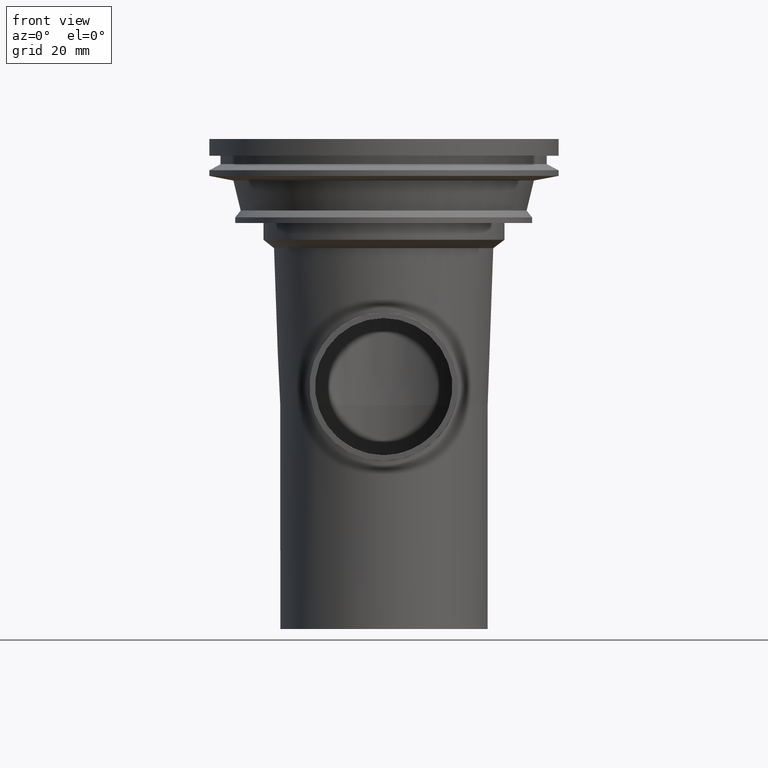
[diagram: clean part render]
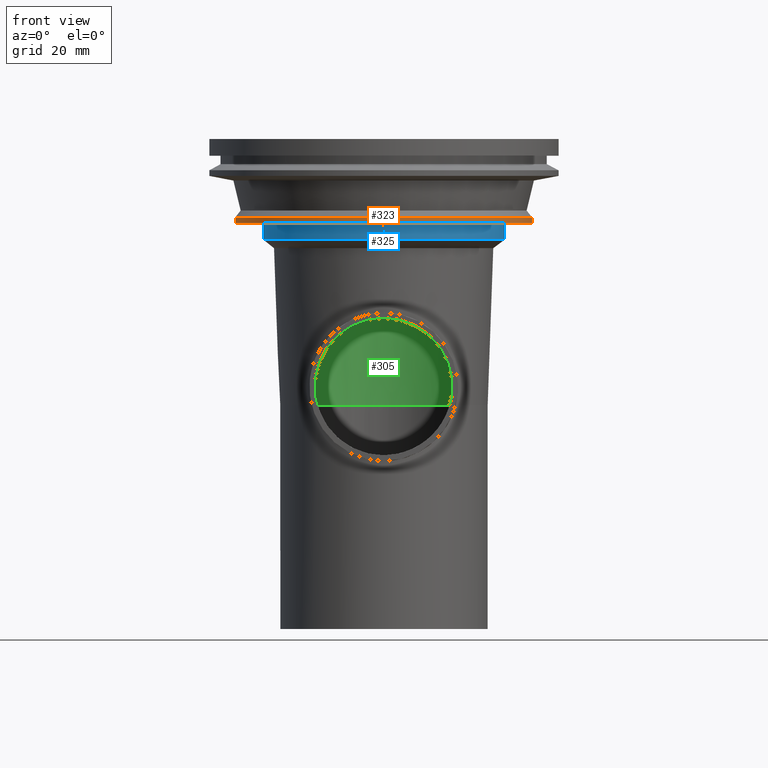
[diagram: same view with three faces highlighted in distinct colors, each labeled with its STEP entity id]
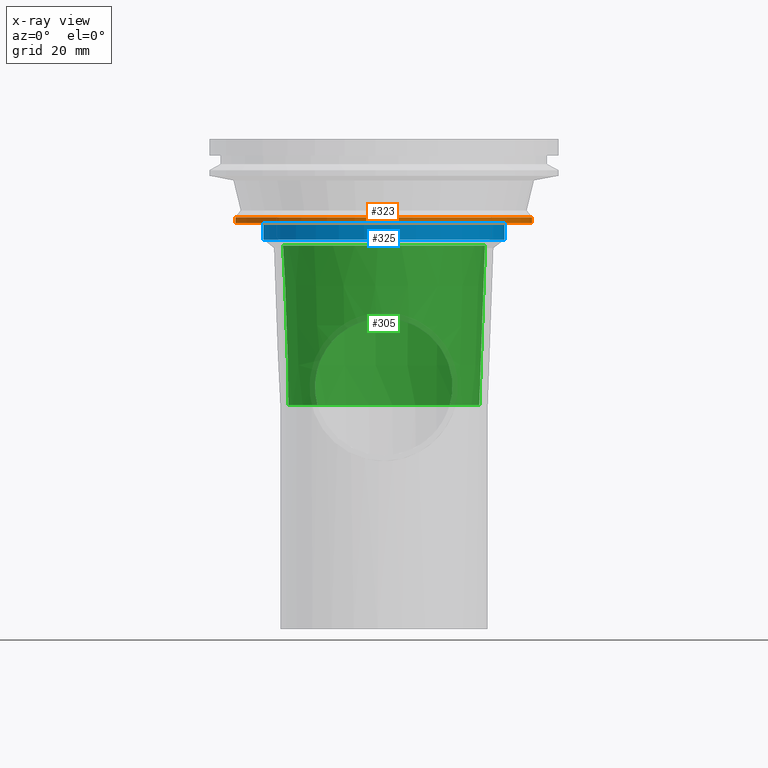
[diagram: x-ray of the same camera — body ghosted, the three highlighted faces saturated]
A machine part, front view with three faces highlighted in distinct colors.
The next image is the same camera in x-ray (body ghosted, the three faces saturated) — at least one of them is partly hidden behind the body in this view.
Their STEP definitions:

[orange] entity #323 — the highlighted cylindrical surface (bore or boss wall) has radius 53 mm, axis along (0, 0, 1).
#57=CIRCLE('',#384,53.);
#58=CIRCLE('',#386,53.);
#107=ORIENTED_EDGE('',*,*,#148,.T.);
#108=ORIENTED_EDGE('',*,*,#147,.F.);
#147=EDGE_CURVE('',#175,#175,#57,.T.);
#148=EDGE_CURVE('',#176,#176,#58,.T.);
#175=VERTEX_POINT('',#667);
#176=VERTEX_POINT('',#670);
#224=EDGE_LOOP('',(#107));
#225=EDGE_LOOP('',(#108));
#278=FACE_BOUND('',#224,.T.);
#279=FACE_BOUND('',#225,.T.);
#300=CYLINDRICAL_SURFACE('',#385,53.);
#323=ADVANCED_FACE('',(#278,#279),#300,.T.);
#384=AXIS2_PLACEMENT_3D('',#666,#480,#481);
#385=AXIS2_PLACEMENT_3D('',#668,#482,#483);
#386=AXIS2_PLACEMENT_3D('',#669,#484,#485);
#480=DIRECTION('',(0.,0.,1.));
#481=DIRECTION('',(1.,0.,0.));
#482=DIRECTION('',(0.,0.,1.));
#483=DIRECTION('',(1.,0.,0.));
#484=DIRECTION('',(0.,0.,1.));
#485=DIRECTION('',(1.,0.,0.));
#666=CARTESIAN_POINT('',(0.,0.,-28.0001386583387));
#667=CARTESIAN_POINT('',(53.,0.,-28.0001386583387));
#668=CARTESIAN_POINT('',(0.,0.,50.));
#669=CARTESIAN_POINT('',(0.,0.,-30.));
#670=CARTESIAN_POINT('',(53.,0.,-30.));

[blue] entity #325 — the highlighted cylindrical surface (bore or boss wall) has radius 43.145 mm, axis along (0, 0, 1).
#59=CIRCLE('',#388,43.145);
#60=CIRCLE('',#390,43.145);
#111=ORIENTED_EDGE('',*,*,#150,.T.);
#112=ORIENTED_EDGE('',*,*,#149,.F.);
#149=EDGE_CURVE('',#177,#177,#59,.T.);
#150=EDGE_CURVE('',#178,#178,#60,.T.);
#177=VERTEX_POINT('',#673);
#178=VERTEX_POINT('',#676);
#228=EDGE_LOOP('',(#111));
#229=EDGE_LOOP('',(#112));
#282=FACE_BOUND('',#228,.T.);
#283=FACE_BOUND('',#229,.T.);
#301=CYLINDRICAL_SURFACE('',#389,43.145);
#325=ADVANCED_FACE('',(#282,#283),#301,.T.);
#388=AXIS2_PLACEMENT_3D('',#672,#488,#489);
#389=AXIS2_PLACEMENT_3D('',#674,#490,#491);
#390=AXIS2_PLACEMENT_3D('',#675,#492,#493);
#488=DIRECTION('',(0.,0.,1.));
#489=DIRECTION('',(1.,0.,0.));
#490=DIRECTION('',(0.,0.,1.));
#491=DIRECTION('',(1.,0.,0.));
#492=DIRECTION('',(0.,0.,1.));
#493=DIRECTION('',(1.,0.,0.));
#672=CARTESIAN_POINT('',(0.,0.,-30.));
#673=CARTESIAN_POINT('',(43.145,0.,-30.));
#674=CARTESIAN_POINT('',(0.,0.,50.));
#675=CARTESIAN_POINT('',(0.,0.,-36.));
#676=CARTESIAN_POINT('',(43.145,0.,-36.));

[green] entity #305 — the highlighted conical surface has half-angle 2.046 deg.
#27=CONICAL_SURFACE('',#348,34.143,0.0357094364958043);
#37=CIRCLE('',#346,34.143);
#39=CIRCLE('',#349,36.1757550315357);
#68=ORIENTED_EDGE('',*,*,#127,.T.);
#69=ORIENTED_EDGE('',*,*,#125,.F.);
#70=ORIENTED_EDGE('',*,*,#122,.F.);
#122=EDGE_CURVE('',#152,#153,#180,.T.);
#125=EDGE_CURVE('',#153,#152,#37,.T.);
#127=EDGE_CURVE('',#156,#156,#39,.T.);
#152=VERTEX_POINT('',#535);
#153=VERTEX_POINT('',#536);
#156=VERTEX_POINT('',#566);
#180=B_SPLINE_CURVE_WITH_KNOTS('',3,(#506,#507,#508,#509,#510,#511,#512,
#513,#514,#515,#516,#517,#518,#519,#520,#521,#522,#523,#524,#525,#526,#527,
#528,#529,#530,#531,#532,#533,#534),.UNSPECIFIED.,.F.,.F.,(4,1,1,1,1,1,
1,1,1,1,1,1,1,1,1,1,1,1,1,1,1,1,1,1,1,1,4),(2.08824207813058E-7,0.00584334820832428,
0.00876491790038252,0.0116864875924408,0.014608057284499,0.0175296269765572,
0.0233727663606737,0.0262943360527319,0.0292159057447902,0.0350590451289066,
0.0379806148209649,0.0409021845130231,0.0438237542050813,0.0467453238971396,
0.0496668935891978,0.052588463281256,0.0584316026653725,0.0613531723574307,
0.064274742049489,0.0701178814336055,0.0730394511256637,0.0759610208177219,
0.0818041602018384,0.0847257298938966,0.0876472995859549,0.0905688692780131,
0.0934904389700713),.UNSPECIFIED.);
#188=EDGE_LOOP('',(#68));
#189=EDGE_LOOP('',(#69,#70));
#242=FACE_BOUND('',#188,.T.);
#243=FACE_BOUND('',#189,.T.);
#305=ADVANCED_FACE('',(#242,#243),#27,.F.);
#346=AXIS2_PLACEMENT_3D('',#561,#404,#405);
#348=AXIS2_PLACEMENT_3D('',#564,#408,#409);
#349=AXIS2_PLACEMENT_3D('',#565,#410,#411);
#404=DIRECTION('',(0.,0.,1.));
#405=DIRECTION('',(1.,0.,0.));
#408=DIRECTION('',(0.,0.,1.));
#409=DIRECTION('',(1.,0.,0.));
#410=DIRECTION('',(0.,0.,1.));
#411=DIRECTION('',(1.,0.,0.));
#506=CARTESIAN_POINT('',(-23.6220236220355,-24.6524734864475,-94.9999999999996));
#507=CARTESIAN_POINT('',(-24.1353230918689,-24.2529255524038,-93.1345888920638));
#508=CARTESIAN_POINT('',(-24.5768480491504,-23.9437577479033,-90.2406856937661));
#509=CARTESIAN_POINT('',(-24.4591190572159,-24.266913583681,-86.3011511830542));
#510=CARTESIAN_POINT('',(-24.0332903827029,-24.8342150542807,-83.4625639398011));
#511=CARTESIAN_POINT('',(-23.2863618041603,-25.6735427153631,-80.7166123166587));
#512=CARTESIAN_POINT('',(-21.938495784923,-27.0145055089608,-77.3328238384925));
#513=CARTESIAN_POINT('',(-20.0527542667314,-28.602450273817,-74.2278590746328));
#514=CARTESIAN_POINT('',(-17.7381497788545,-30.1774282937036,-71.5287978442168));
#515=CARTESIAN_POINT('',(-15.0885592357347,-31.7260832934169,-69.0490863407522));
#516=CARTESIAN_POINT('',(-12.0627199962117,-33.0884058587154,-67.0356642091545));
#517=CARTESIAN_POINT('',(-8.63452239734272,-34.1587057988114,-65.5120189071933));
#518=CARTESIAN_POINT('',(-5.86159850652869,-34.7750139960671,-64.6531125738945));
#519=CARTESIAN_POINT('',(-3.01996290398081,-35.1569738619573,-64.1277522840743));
#520=CARTESIAN_POINT('',(-0.0491315078073618,-35.2937144863481,-63.9409195948453));
#521=CARTESIAN_POINT('',(2.85881213173204,-35.1706300323081,-64.1090044824123));
#522=CARTESIAN_POINT('',(6.71521555851582,-34.6700492046334,-64.7975416994858));
#523=CARTESIAN_POINT('',(10.2926613566155,-33.7159973079495,-66.1288162583788));
#524=CARTESIAN_POINT('',(13.5204570099022,-32.4319924902202,-68.0065068907632));
#525=CARTESIAN_POINT('',(16.4362301160349,-31.0061397350416,-70.1738852131606));
#526=CARTESIAN_POINT('',(18.9478178782501,-29.4046522251649,-72.7906534003183));
#527=CARTESIAN_POINT('',(20.9633337814773,-27.8366334824085,-75.7243380661876));
#528=CARTESIAN_POINT('',(22.685930070608,-26.3186770126668,-78.9386592754314));
#529=CARTESIAN_POINT('',(23.8752156639945,-25.0423452019613,-82.4444571525247));
#530=CARTESIAN_POINT('',(24.4581656508045,-24.2685175251855,-86.2882442467823));
#531=CARTESIAN_POINT('',(24.549124157196,-24.0260795207017,-89.2038797181615));
#532=CARTESIAN_POINT('',(24.2831382824069,-24.1466358745267,-92.1720720040628));
#533=CARTESIAN_POINT('',(23.8791682334457,-24.4523143117794,-94.065495986921));
#534=CARTESIAN_POINT('',(23.6220236220355,-24.6524734864475,-94.9999999999996));
#535=CARTESIAN_POINT('',(-23.6220236220355,-24.6524734864475,-94.9999999999996));
#536=CARTESIAN_POINT('',(23.6220236220355,-24.6524734864475,-94.9999999999996));
#561=CARTESIAN_POINT('',(0.,0.,-95.));
#564=CARTESIAN_POINT('',(0.,0.,-95.));
#565=CARTESIAN_POINT('',(0.,0.,-38.0993282014014));
#566=CARTESIAN_POINT('',(36.1757550315357,0.,-38.0993282014014));